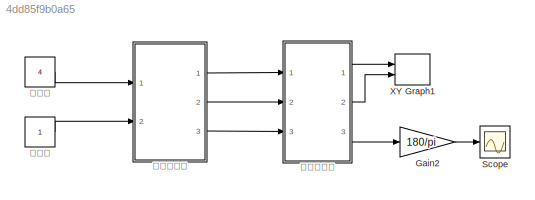
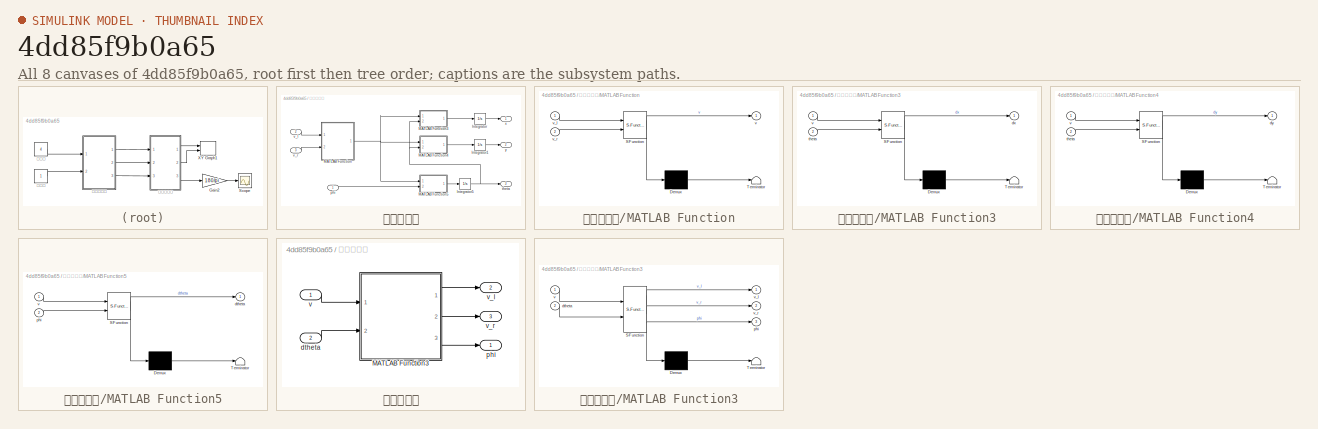
[diagram: thumbnail index - all 8 canvases of the model, root first then tree order]
MODEL slx_4dd85f9b0a65
KIND model
CONFIG AbsTol = auto
CONFIG EnableMultiTasking = off
CONFIG FixedStep = auto
CONFIG MaxStep = auto
CONFIG MinStep = auto
CONFIG RelTol = 1e-3
CONFIG SampleTimeConstraint = Unconstrained
CONFIG SolverName = FixedStepAuto
CONFIG StartTime = 0.0
CONFIG StopTime = 7
BLOCK [Gain] Gain2
  Gain = 180/pi
BLOCK [Scope] Scope
  Floating = off
  NumInputPorts = 1
  Ports = [1]
  ScopeSpecificationString = Simulink.scopes.TimeScopeBlockCfg('CurrentConfiguration', extmgr.ConfigurationSet(extmgr.Configuration('Core','General UI',true),extmgr.Configuration('Core','Source UI',true),extmgr.Configuration('Sources','WiredSimulink',true),extmgr.Configuration('Visuals','Time Domain',true,'SerializedDisplays',{struct('MinYLimReal','-50.15908','MaxYLimReal','451.43169','YLabelReal','','MinYLimMag','0.00000','M...<+1645ch>
BLOCK [Record] XY Graph1
  CompatibilityTag = XY
  FileSettingsInternal = {"entries":[{"content":{"excelSettings":{"content":{},"type":"Streamout.ExcelSettings"}},"type":"Streamout.FileSettingStorage","uuid":"04fbfbed-5dd3-4ea5-8266-73876d63a9cb"}],"packageUris":["http://schema.mathworks.com/mf0/streamout_blocks/R2020a"],"version":"1.0"}
  Layout = [1 1]
  Ports = [2]
  SignalsInternal = {"entries":[{"content":{"signals":[{"content":{"blockPath":["car_like/XY Graph1"],"channel":[],"dimensions":[1],"domain":"car_like/XY Graph1","lineColor":"#a2142f","plots":[1],"port":1,"sid":[""],"signalID":3840,"signalName":"正向运动学:1"},"type":"RecordBlkView.Signal","uuid":"82e4e48a-2958-4a5e-9271-d9f6d61cdcc7"},{"content":{"blockPath":["car_like/XY Graph1"],"channel":[],"dimensions":[1],"domain":"...<+367ch>
  VisualizationBindings = {"xyplotplugin":{"info":[{"series":[{"bindingParametersList":[{"parameter":"X-Axis","signalID":3840,"signalName":"正向运动学:1"},{"parameter":"Y-Axis","signalID":3844,"signalName":"正向运动学:2"}],"seriesID":31400}],"subplotID":1}]}}
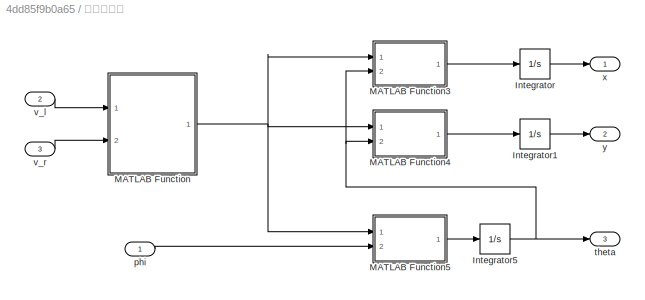
BLOCK [SubSystem] 正向运动学
  Ports = [3, 3]
  RequestExecContextInheritance = off
BLOCK [Integrator] 正向运动学/Integrator
  InitialCondition = 0.0001
  Ports = [1, 1]
BLOCK [Integrator] 正向运动学/Integrator1
  Ports = [1, 1]
BLOCK [Integrator] 正向运动学/Integrator5
  Ports = [1, 1]
BLOCK [SubSystem] 正向运动学/MATLAB Function
  ErrorFcn = Stateflow.Translate.translate
  PermitHierarchicalResolution = ExplicitOnly
  Ports = [2, 1]
  RequestExecContextInheritance = off
  SFBlockType = MATLAB Function
  TreatAsAtomicUnit = on
BLOCK [Demux] 正向运动学/MATLAB Function/ Demux 
  Outputs = 1
  Ports = [1, 1]
BLOCK [S-Function] 正向运动学/MATLAB Function/ SFunction 
  EnableBusSupport = on
  FunctionName = sf_sfun
  PortCounts = [2 2]
  Ports = [2, 2]
  SFcnIsStateOwnerBlock = off
  SFunctionDeploymentMode = off
  Tag = Stateflow S-Function 11
BLOCK [Terminator] 正向运动学/MATLAB Function/ Terminator 
BLOCK [Outport] 正向运动学/MATLAB Function/v
BLOCK [Inport] 正向运动学/MATLAB Function/v_l
BLOCK [Inport] 正向运动学/MATLAB Function/v_r
  Port = 2
BLOCK [SubSystem] 正向运动学/MATLAB Function3
  ErrorFcn = Stateflow.Translate.translate
  PermitHierarchicalResolution = ExplicitOnly
  Ports = [2, 1]
  RequestExecContextInheritance = off
  SFBlockType = MATLAB Function
  TreatAsAtomicUnit = on
BLOCK [Demux] 正向运动学/MATLAB Function3/ Demux 
  Outputs = 1
  Ports = [1, 1]
BLOCK [S-Function] 正向运动学/MATLAB Function3/ SFunction 
  EnableBusSupport = on
  FunctionName = sf_sfun
  PortCounts = [2 2]
  Ports = [2, 2]
  SFcnIsStateOwnerBlock = off
  SFunctionDeploymentMode = off
  Tag = Stateflow S-Function 1
BLOCK [Terminator] 正向运动学/MATLAB Function3/ Terminator 
BLOCK [Outport] 正向运动学/MATLAB Function3/dx
BLOCK [Inport] 正向运动学/MATLAB Function3/theta
  Port = 2
BLOCK [Inport] 正向运动学/MATLAB Function3/v
BLOCK [SubSystem] 正向运动学/MATLAB Function4
  ErrorFcn = Stateflow.Translate.translate
  PermitHierarchicalResolution = ExplicitOnly
  Ports = [2, 1]
  RequestExecContextInheritance = off
  SFBlockType = MATLAB Function
  TreatAsAtomicUnit = on
BLOCK [Demux] 正向运动学/MATLAB Function4/ Demux 
  Outputs = 1
  Ports = [1, 1]
BLOCK [S-Function] 正向运动学/MATLAB Function4/ SFunction 
  EnableBusSupport = on
  FunctionName = sf_sfun
  PortCounts = [2 2]
  Ports = [2, 2]
  SFcnIsStateOwnerBlock = off
  SFunctionDeploymentMode = off
  Tag = Stateflow S-Function 2
BLOCK [Terminator] 正向运动学/MATLAB Function4/ Terminator 
BLOCK [Outport] 正向运动学/MATLAB Function4/dy
BLOCK [Inport] 正向运动学/MATLAB Function4/theta
  Port = 2
BLOCK [Inport] 正向运动学/MATLAB Function4/v
BLOCK [SubSystem] 正向运动学/MATLAB Function5
  ErrorFcn = Stateflow.Translate.translate
  PermitHierarchicalResolution = ExplicitOnly
  Ports = [2, 1]
  RequestExecContextInheritance = off
  SFBlockType = MATLAB Function
  TreatAsAtomicUnit = on
BLOCK [Demux] 正向运动学/MATLAB Function5/ Demux 
  Outputs = 1
  Ports = [1, 1]
BLOCK [S-Function] 正向运动学/MATLAB Function5/ SFunction 
  EnableBusSupport = on
  FunctionName = sf_sfun
  PortCounts = [2 2]
  Ports = [2, 2]
  SFcnIsStateOwnerBlock = off
  SFunctionDeploymentMode = off
  Tag = Stateflow S-Function 3
BLOCK [Terminator] 正向运动学/MATLAB Function5/ Terminator 
BLOCK [Outport] 正向运动学/MATLAB Function5/dtheta
BLOCK [Inport] 正向运动学/MATLAB Function5/phi
  Port = 2
BLOCK [Inport] 正向运动学/MATLAB Function5/v
BLOCK [Inport] 正向运动学/phi
BLOCK [Outport] 正向运动学/theta
  Port = 3
BLOCK [Inport] 正向运动学/v_l
  Port = 2
BLOCK [Inport] 正向运动学/v_r
  Port = 3
BLOCK [Outport] 正向运动学/x
BLOCK [Outport] 正向运动学/y
  Port = 2
BLOCK [Constant] 线速度
  Value = 4
BLOCK [Constant] 角速度
BLOCK [SubSystem] 逆向运动学
  Ports = [2, 3]
  RequestExecContextInheritance = off
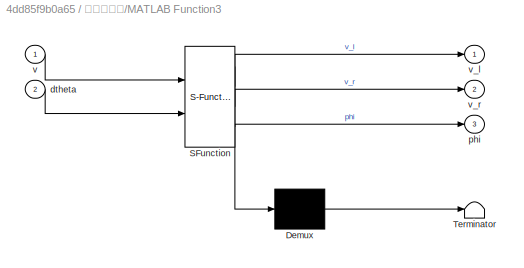
BLOCK [SubSystem] 逆向运动学/MATLAB Function3
  ErrorFcn = Stateflow.Translate.translate
  PermitHierarchicalResolution = ExplicitOnly
  Ports = [2, 3]
  RequestExecContextInheritance = off
  SFBlockType = MATLAB Function
  TreatAsAtomicUnit = on
BLOCK [Demux] 逆向运动学/MATLAB Function3/ Demux 
  Outputs = 1
  Ports = [1, 1]
BLOCK [S-Function] 逆向运动学/MATLAB Function3/ SFunction 
  EnableBusSupport = on
  FunctionName = sf_sfun
  PortCounts = [2 4]
  Ports = [2, 4]
  SFcnIsStateOwnerBlock = off
  SFunctionDeploymentMode = off
  Tag = Stateflow S-Function 14
BLOCK [Terminator] 逆向运动学/MATLAB Function3/ Terminator 
BLOCK [Inport] 逆向运动学/MATLAB Function3/dtheta
  Port = 2
BLOCK [Outport] 逆向运动学/MATLAB Function3/phi
  Port = 3
BLOCK [Inport] 逆向运动学/MATLAB Function3/v
BLOCK [Outport] 逆向运动学/MATLAB Function3/v_l
BLOCK [Outport] 逆向运动学/MATLAB Function3/v_r
  Port = 2
BLOCK [Inport] 逆向运动学/dtheta
  Port = 2
BLOCK [Outport] 逆向运动学/phi
BLOCK [Inport] 逆向运动学/v
BLOCK [Outport] 逆向运动学/v_l
  Port = 2
BLOCK [Outport] 逆向运动学/v_r
  Port = 3
LINE Gain2:1 -> Scope:1
LINE 正向运动学/Integrator1:1 -> 正向运动学/y:1
NET 正向运动学/Integrator5:1 -> 正向运动学/MATLAB Function3:2, 正向运动学/MATLAB Function4:2, 正向运动学/theta:1
LINE 正向运动学/Integrator:1 -> 正向运动学/x:1
LINE 正向运动学/MATLAB Function3:1 -> 正向运动学/Integrator:1
LINE 正向运动学/MATLAB Function4:1 -> 正向运动学/Integrator1:1
LINE 正向运动学/MATLAB Function5:1 -> 正向运动学/Integrator5:1
NET 正向运动学/MATLAB Function:1 -> 正向运动学/MATLAB Function3:1, 正向运动学/MATLAB Function4:1, 正向运动学/MATLAB Function5:1
LINE 正向运动学/phi:1 -> 正向运动学/MATLAB Function5:2
LINE 正向运动学/v_l:1 -> 正向运动学/MATLAB Function:1
LINE 正向运动学/v_r:1 -> 正向运动学/MATLAB Function:2
LINE 正向运动学:1 -> XY Graph1:1
LINE 正向运动学:2 -> XY Graph1:2
LINE 正向运动学:3 -> Gain2:1
LINE 线速度:1 -> 逆向运动学:1
LINE 角速度:1 -> 逆向运动学:2
LINE 逆向运动学/MATLAB Function3:1 -> 逆向运动学/v_l:1
LINE 逆向运动学/MATLAB Function3:2 -> 逆向运动学/v_r:1
LINE 逆向运动学/MATLAB Function3:3 -> 逆向运动学/phi:1
LINE 逆向运动学/dtheta:1 -> 逆向运动学/MATLAB Function3:2
LINE 逆向运动学/v:1 -> 逆向运动学/MATLAB Function3:1
LINE 逆向运动学:1 -> 正向运动学:1
LINE 逆向运动学:2 -> 正向运动学:2
LINE 逆向运动学:3 -> 正向运动学:3
note: NET lines group one-source signal fan-out (src -> all destinations, sorted); 1:1 wires keep LINE
CHART 正向运动学/MATLAB Function3 states=1 transitions=1
  STATE_LABEL 'eML_blk_kernel()'
  STATE_LABEL 'SCRIPT:\nfunction dx = fcn(v,theta)\ndx=v*cos(theta);\n'
CHART 正向运动学/MATLAB Function4 states=1 transitions=1
  STATE_LABEL 'eML_blk_kernel()'
  STATE_LABEL 'SCRIPT:\nfunction dy = fcn(v,theta)\ndy=v*sin(theta);\n'
CHART 正向运动学/MATLAB Function5 states=1 transitions=1
  STATE_LABEL 'eML_blk_kernel()'
  STATE_LABEL 'SCRIPT:\nfunction dtheta = fcn(v,phi)\nL=0.28;\ndtheta=v*tan(phi)/L;\n'
CHART 正向运动学/MATLAB Function states=1 transitions=1
  STATE_LABEL 'eML_blk_kernel()'
  STATE_LABEL 'SCRIPT:\nfunction v = fcn(v_l,v_r)\nv=(v_l+v_r)/2;'
CHART 逆向运动学/MATLAB Function3 states=1 transitions=1
  STATE_LABEL 'eML_blk_kernel()'
  STATE_LABEL 'SCRIPT:\nfunction [v_l,v_r,phi] = fcn(v,dtheta)\nW=0.18;%宽度\nL=0.28;\nR=v/dtheta;   %L/phi;\n\nv_l = (v/R)*(R-W/2);\nv_r = (v/R)*(R+W/2);\n\nphi_l=atan(L/(R-W/2));\nphi_r=atan(L/(R+W/2));\nphi=(phi_l+phi_r)/2;\nif phi>pi/2\n    phi=pi/2;\nend'
CHART  states=0 transitions=0
CHART  states=0 transitions=0
CHART  states=0 transitions=0
CHART  states=0 transitions=0
CHART  states=0 transitions=0
